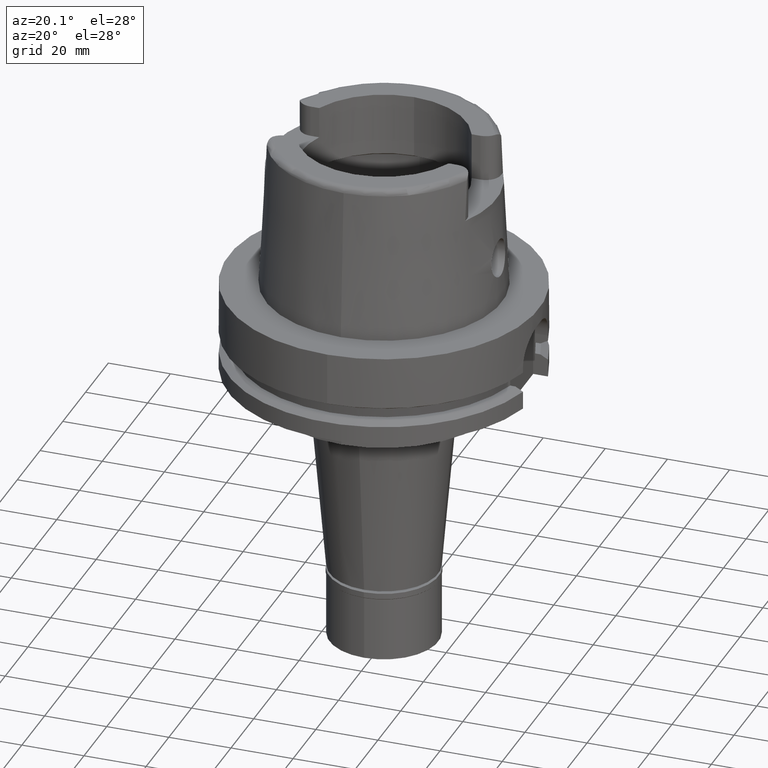
[diagram: clean part render]
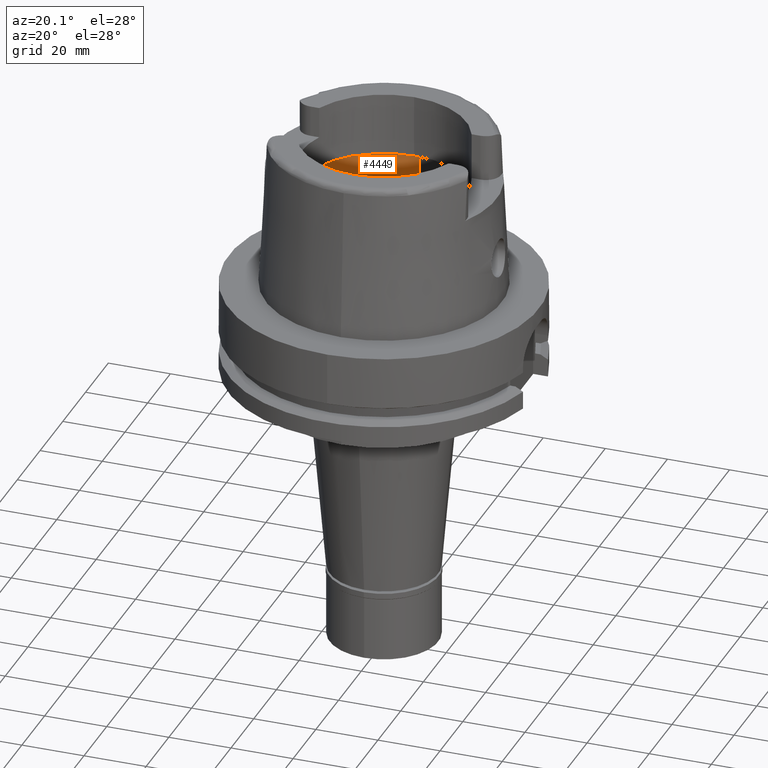
[diagram: same view with one face highlighted and labeled with its STEP entity id]
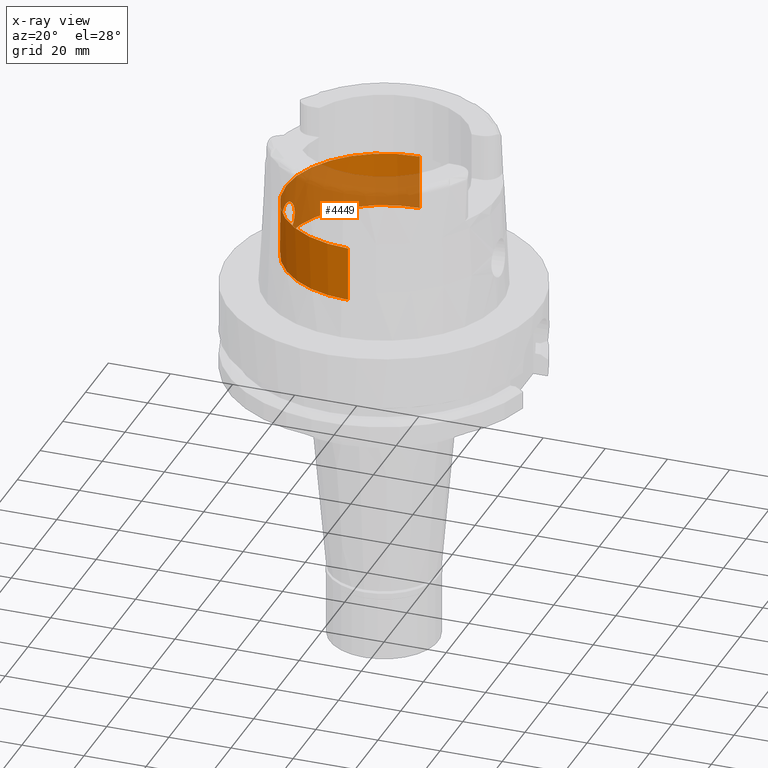
[diagram: x-ray of the same camera — body ghosted, the highlighted face saturated]
A machine part, auxiliary view. The second image highlights one B-rep face of the part: STEP entity #4449.
The next image is the same camera in x-ray: the body ghosted, the highlighted face saturated — about 49% of this face is hidden behind the body in this view.
In plain terms, the highlighted cylindrical surface (partial cylindrical patch) has radius 31.5 mm, axis along (0, 0, 1).
Its self-contained STEP definition (entity closure, byte-faithful):
#18 = CARTESIAN_POINT ( 'NONE',  ( -31.32349082288655140, 3.327008033628819028, 10.00396162849962778 ) ) ;
#25 = CARTESIAN_POINT ( 'NONE',  ( -31.13175257088324699, -4.810165974261359167, 11.40952238063374402 ) ) ;
#55 = CARTESIAN_POINT ( 'NONE',  ( -31.18851524685732457, -4.421882854796444384, 10.94295910892585511 ) ) ;
#81 = CARTESIAN_POINT ( 'NONE',  ( 0.0000000000000000000, 31.50000000000000000, 9.496624327025999790 ) ) ;
#94 = CARTESIAN_POINT ( 'NONE',  ( -31.16672936162041196, 4.570066417542120618, 18.88787845514293195 ) ) ;
#125 = EDGE_CURVE ( 'NONE', #5348, #2144, #3372, .T. ) ;
#150 = CARTESIAN_POINT ( 'NONE',  ( -31.42014854019160808, 2.241940693474473445, 20.56635399946615550 ) ) ;
#282 = CARTESIAN_POINT ( 'NONE',  ( -31.34101844320846908, -3.160485929888725121, 20.10354672025071920 ) ) ;
#301 = EDGE_CURVE ( 'NONE', #3177, #505, #867, .T. ) ;
#307 = CARTESIAN_POINT ( 'NONE',  ( -30.94743210533819777, -5.874330193940548561, 16.22161201482539639 ) ) ;
#336 = CARTESIAN_POINT ( 'NONE',  ( -30.95593416540121368, -5.831243459130761586, 13.54677038949638046 ) ) ;
#362 = CARTESIAN_POINT ( 'NONE',  ( -31.45368646663258971, -1.708868095576118851, 20.75266945037670752 ) ) ;
#377 = CARTESIAN_POINT ( 'NONE',  ( -30.93762858749316891, 5.925727124015542913, 14.05740824919518239 ) ) ;
#392 = CARTESIAN_POINT ( 'NONE',  ( -30.94930950251468005, -5.864458753033531480, 16.26837131289466853 ) ) ;
#409 = CARTESIAN_POINT ( 'NONE',  ( -31.05575275879042962, 5.272411395640640208, 12.13599049502863814 ) ) ;
#437 = CARTESIAN_POINT ( 'NONE',  ( -31.23701506620991353, 4.061635533222172079, 10.58374633635855844 ) ) ;
#452 = CIRCLE ( 'NONE', #1891, 31.50000000000000000 ) ;
#468 = CARTESIAN_POINT ( 'NONE',  ( -31.06311577634362919, 5.229733588350966578, 12.05833787244963595 ) ) ;
#493 = CARTESIAN_POINT ( 'NONE',  ( -30.94593045436082690, 5.882241950627359550, 16.18293882650242921 ) ) ;
#505 = VERTEX_POINT ( 'NONE', #3520 ) ;
#509 = CARTESIAN_POINT ( 'NONE',  ( -31.17833174790802531, -4.494014212508953499, 11.02325130734651104 ) ) ;
#525 = CARTESIAN_POINT ( 'NONE',  ( -31.47898683857984636, 1.327297640497632880, 20.89339845177632426 ) ) ;
#570 = CARTESIAN_POINT ( 'NONE',  ( -31.17415780736850550, 4.519045460301798656, 18.94694097098702557 ) ) ;
#571 = EDGE_CURVE ( 'NONE', #1909, #3177, #2905, .T. ) ;
#712 = CARTESIAN_POINT ( 'NONE',  ( -30.97641383826908168, -5.721085987082438429, 16.81529827853730907 ) ) ;
#739 = CARTESIAN_POINT ( 'NONE',  ( -31.10508259665672526, -4.972008224906379503, 18.36036868394343458 ) ) ;
#764 = CARTESIAN_POINT ( 'NONE',  ( -31.43691933869498811, -1.990915451362954114, 20.66006061400517879 ) ) ;
#768 = ORIENTED_EDGE ( 'NONE', *, *, #571, .T. ) ;
#779 = CARTESIAN_POINT ( 'NONE',  ( 0.0000000000000000000, 31.50000000000000000, 9.496624327025999790 ) ) ;
#796 = CARTESIAN_POINT ( 'NONE',  ( -31.29475139021570129, -3.589615595559386474, 19.80801638660842201 ) ) ;
#825 = CARTESIAN_POINT ( 'NONE',  ( -31.09189596655163257, -5.054034302582627092, 18.23418813231210933 ) ) ;
#840 = CARTESIAN_POINT ( 'NONE',  ( -31.06110456129265174, 5.240538519684997176, 17.92214140273096135 ) ) ;
#867 = LINE ( 'NONE', #779, #5400 ) ;
#870 = CARTESIAN_POINT ( 'NONE',  ( -31.40918884336000616, 2.390158196043999705, 9.496624327025999790 ) ) ;
#895 = CARTESIAN_POINT ( 'NONE',  ( -31.24084224150786326, 4.032106271963857402, 10.55664963490039909 ) ) ;
#908 = ORIENTED_EDGE ( 'NONE', *, *, #4092, .F. ) ;
#921 = CARTESIAN_POINT ( 'NONE',  ( -30.93371310323655621, 5.946578471900404672, 15.80342777563466861 ) ) ;
#929 = CARTESIAN_POINT ( 'NONE',  ( -31.40918884336000616, -2.390158196043999705, 9.496624327025999790 ) ) ;
#944 = CARTESIAN_POINT ( 'NONE',  ( -31.23249460758089668, 4.094819542906014576, 19.38632038932085777 ) ) ;
#1021 = CARTESIAN_POINT ( 'NONE',  ( -31.34174650335914336, 3.171146443259812209, 20.10494144054478127 ) ) ;
#1038 = VERTEX_POINT ( 'NONE', #5267 ) ;
#1054 = CARTESIAN_POINT ( 'NONE',  ( -31.13846561617818054, 4.759434184954509206, 18.65467603972629718 ) ) ;
#1126 = CARTESIAN_POINT ( 'NONE',  ( -30.94252951856037015, -5.900034824237287090, 13.86582254990255691 ) ) ;
#1154 = CARTESIAN_POINT ( 'NONE',  ( -31.39719078221479975, -2.554410369548801185, 20.43989256169862401 ) ) ;
#1174 = DIRECTION ( 'NONE',  ( 0.0000000000000000000, 0.0000000000000000000, 1.000000000000000000 ) ) ;
#1179 = CARTESIAN_POINT ( 'NONE',  ( -31.50000000000000000, -0.3265479863023711404, 20.99999999999999645 ) ) ;
#1202 = CARTESIAN_POINT ( 'NONE',  ( -30.98612694720974048, -5.668766686956753453, 16.97341805757593747 ) ) ;
#1222 = CARTESIAN_POINT ( 'NONE',  ( -31.36782009633069279, 2.891028775829193709, 9.731273391163027142 ) ) ;
#1235 = CARTESIAN_POINT ( 'NONE',  ( -31.04644542293799958, -5.330220524948030558, 17.78089709246167160 ) ) ;
#1250 = CARTESIAN_POINT ( 'NONE',  ( -31.04983422542203542, 5.307409309013299215, 17.80000425750135662 ) ) ;
#1259 = VERTEX_POINT ( 'NONE', #3703 ) ;
#1263 = CARTESIAN_POINT ( 'NONE',  ( -31.04447941503503472, -5.337713364165090013, 12.25976757146831275 ) ) ;
#1276 = CARTESIAN_POINT ( 'NONE',  ( -30.92512888561315165, 5.990997169341833128, 14.52846900197995694 ) ) ;
#1305 = CARTESIAN_POINT ( 'NONE',  ( -30.95644246677530376, 5.827538570014441532, 13.56249915938355954 ) ) ;
#1319 = CARTESIAN_POINT ( 'NONE',  ( -31.22255303074435062, -4.171623873480054812, 10.68733146413649315 ) ) ;
#1332 = CARTESIAN_POINT ( 'NONE',  ( -30.93437236050402106, 5.942683822532534244, 14.17237942525408023 ) ) ;
#1350 = DIRECTION ( 'NONE',  ( 0.0000000000000000000, 1.000000000000000000, 0.0000000000000000000 ) ) ;
#1440 = CARTESIAN_POINT ( 'NONE',  ( -31.39509078049260182, 2.572347112283274395, 20.42299881209909529 ) ) ;
#1455 = ORIENTED_EDGE ( 'NONE', *, *, #3115, .F. ) ;
#1467 = CARTESIAN_POINT ( 'NONE',  ( -31.20791841440617276, 4.280343282812619776, 19.20809647800862763 ) ) ;
#1490 = DIRECTION ( 'NONE',  ( 0.0000000000000000000, -1.000000000000000000, 0.0000000000000000000 ) ) ;
#1514 = EDGE_LOOP ( 'NONE', ( #908, #768, #1865, #5434, #2369, #3731, #1455 ) ) ;
#1544 = CARTESIAN_POINT ( 'NONE',  ( -30.92775184720041182, -5.977412640802596933, 14.46795128574595246 ) ) ;
#1574 = CARTESIAN_POINT ( 'NONE',  ( -30.93382892928060812, -5.945539850610282784, 14.19319525885474320 ) ) ;
#1595 = CARTESIAN_POINT ( 'NONE',  ( 0.0000000000000000000, 0.0000000000000000000, -121.4650000000000034 ) ) ;
#1596 = CARTESIAN_POINT ( 'NONE',  ( 0.0000000000000000000, -31.50000000000000000, 9.496624327025999790 ) ) ;
#1601 = CARTESIAN_POINT ( 'NONE',  ( -31.20656966024432322, -4.300276977927140365, 19.19831898703425566 ) ) ;
#1628 = CARTESIAN_POINT ( 'NONE',  ( -31.03977988921471365, -5.364996439226711544, 12.31341656941119567 ) ) ;
#1634 = EDGE_CURVE ( 'NONE', #505, #2144, #3247, .T. ) ;
#1641 = CARTESIAN_POINT ( 'NONE',  ( -31.08611155676473459, 5.094545817436173074, 11.82760647908407670 ) ) ;
#1655 = CARTESIAN_POINT ( 'NONE',  ( -31.27991803199300946, -3.717071145084863915, 19.71004023163409613 ) ) ;
#1672 = CARTESIAN_POINT ( 'NONE',  ( -30.97632470182173847, 5.723081686261750178, 16.83399554126872388 ) ) ;
#1699 = CARTESIAN_POINT ( 'NONE',  ( -31.01592085651359554, 5.503769088375016771, 12.58248998919346384 ) ) ;
#1728 = CARTESIAN_POINT ( 'NONE',  ( -31.04848138030923366, 5.314483772730771882, 12.21493974198635435 ) ) ;
#1730 = EDGE_CURVE ( 'NONE', #5348, #1038, #452, .T. ) ;
#1738 = CARTESIAN_POINT ( 'NONE',  ( -31.22684634635114165, -4.139177050816888581, 10.65633344042131014 ) ) ;
#1747 = CARTESIAN_POINT ( 'NONE',  ( 0.0000000000000000000, 0.0000000000000000000, 9.496624327025999790 ) ) ;
#1758 = CARTESIAN_POINT ( 'NONE',  ( -30.96438956022355882, 5.785531937370279820, 13.40106817830474917 ) ) ;
#1816 = CARTESIAN_POINT ( 'NONE',  ( -31.30991082094349665, 3.474573137714659143, 19.90636016714586276 ) ) ;
#1843 = CARTESIAN_POINT ( 'NONE',  ( -31.26938442207115898, 3.804054554472543703, 19.63996593169894211 ) ) ;
#1865 = ORIENTED_EDGE ( 'NONE', *, *, #301, .T. ) ;
#1891 = AXIS2_PLACEMENT_3D ( 'NONE', #1747, #2797, #1490 ) ;
#1897 = DIRECTION ( 'NONE',  ( -0.9971171061384286327, 0.07587803796966216541, 0.0000000000000000000 ) ) ;
#1899 = CARTESIAN_POINT ( 'NONE',  ( -31.17032881003553157, 4.545390972206105218, 18.91657780707596004 ) ) ;
#1909 = VERTEX_POINT ( 'NONE', #3509 ) ;
#1966 = DIRECTION ( 'NONE',  ( 0.0000000000000000000, 4.980251297749999745E-14, 1.000000000000000000 ) ) ;
#2009 = CARTESIAN_POINT ( 'NONE',  ( -30.93368174138095839, -5.946708767630597414, 15.86805407497480047 ) ) ;
#2030 = FACE_OUTER_BOUND ( 'NONE', #1514, .T. ) ;
#2036 = CARTESIAN_POINT ( 'NONE',  ( -30.94710947200959339, -5.876027499039540025, 16.21343106709759851 ) ) ;
#2065 = CARTESIAN_POINT ( 'NONE',  ( -31.01235640770275026, -5.521897817200067671, 12.65128427385259791 ) ) ;
#2092 = CARTESIAN_POINT ( 'NONE',  ( -31.43757814455719313, -1.980494451460060867, 20.66371540743568858 ) ) ;
#2104 = CARTESIAN_POINT ( 'NONE',  ( -30.92192357742606745, 6.008213989269155952, 14.86858479195025495 ) ) ;
#2116 = B_SPLINE_CURVE_WITH_KNOTS ( 'NONE', 3,
 ( #870, #5080, #1222, #18, #2615, #2589, #3786, #5500, #4767, #895, #437, #3070, #3842, #4307, #2962, #3449, #1641, #3867, #468, #409, #2643, #1728, #2190, #5161, #4656, #4683, #4706, #1699, #5564, #1758, #1305, #3370, #3045, #377, #3477, #5188, #1332, #1276, #2104, #4740, #4222, #921, #4334, #5107, #2988, #493, #3812, #5530, #4250, #1672, #3424, #5133, #3400, #1250, #840, #2554, #4791, #4819, #4901, #3093, #2320, #2723, #3970, #5319, #1054, #3141, #3947, #94, #1899, #4413, #570, #2781, #1467, #944, #4023, #2264, #3574, #1843, #3550, #2291, #1816, #1021, #2668, #1440, #4441, #150, #5212, #4473, #3924, #3997, #4366, #525, #4843, #3500 ),
 .UNSPECIFIED., .F., .F.,
 ( 4, 2, 2, 2, 1, 1, 2, 2, 2, 2, 2, 1, 1, 1, 1, 2, 2, 2, 2, 1, 1, 2, 2, 2, 2, 1, 1, 1, 2, 2, 2, 2, 2, 1, 1, 1, 2, 2, 2, 2, 1, 1, 2, 2, 2, 1, 1, 1, 2, 2, 2, 2, 1, 1, 1, 2, 2, 4 ),
 ( 0.0000000000000000000, 0.06249999999998009925, 0.09374999999997020439, 0.1093749999999652500, 0.1171874999999627381, 0.1210937499999615169, 0.1230468749999610034, 0.1249999999999605038, 0.1874999999999471534, 0.2187499999999405476, 0.2343749999999373834, 0.2421874999999356071, 0.2460937499999348854, 0.2480468749999344413, 0.2490234374999341915, 0.2495117187499341360, 0.2499999999999340528, 0.3124999999999486522, 0.3437499999999559797, 0.3593749999999594769, 0.3671874999999610312, 0.3710937499999619194, 0.3749999999999628630, 0.4374999999999754086, 0.4687499999999815148, 0.4843749999999844569, 0.4921874999999859002, 0.4960937499999866218, 0.4980468749999870104, 0.4999999999999873435, 0.5624999999999779066, 0.5937499999999731326, 0.6093749999999708011, 0.6171874999999699130, 0.6210937499999694689, 0.6230468749999692468, 0.6240234374999691358, 0.6249999999999690248, 0.6562499999999792388, 0.6718749999999840128, 0.6796874999999863443, 0.6835937499999874545, 0.6855468749999878986, 0.6874999999999882316, 0.7187499999999936717, 0.7343749999999962252, 0.7421874999999974465, 0.7460937499999981126, 0.7480468749999982236, 0.7499999999999982236, 0.8124999999999987788, 0.8437499999999990008, 0.8593749999999993339, 0.8671874999999994449, 0.8710937499999994449, 0.8730468749999993339, 0.8749999999999992228, 1.000000000000000000 ),
 .UNSPECIFIED. ) ;
#2120 = CARTESIAN_POINT ( 'NONE',  ( -31.04561012872794734, -5.331134960420219393, 12.24700012929614346 ) ) ;
#2144 = VERTEX_POINT ( 'NONE', #5303 ) ;
#2179 = AXIS2_PLACEMENT_3D ( 'NONE', #2806, #4957, #1897 ) ;
#2190 = CARTESIAN_POINT ( 'NONE',  ( -31.04667519188458158, 5.324957521904295277, 12.23505893541012846 ) ) ;
#2197 = CARTESIAN_POINT ( 'NONE',  ( -31.04290399261025613, -5.346870050693134147, 12.27764605081231153 ) ) ;
#2264 = CARTESIAN_POINT ( 'NONE',  ( -31.25913369638497841, 3.886504216267267164, 19.57146610572699075 ) ) ;
#2291 = CARTESIAN_POINT ( 'NONE',  ( -31.27234702492417995, 3.780050857770624884, 19.65954473550145565 ) ) ;
#2320 = CARTESIAN_POINT ( 'NONE',  ( -31.08049678301520302, 5.123837371361086745, 18.12190796477024080 ) ) ;
#2369 = ORIENTED_EDGE ( 'NONE', *, *, #125, .F. ) ;
#2429 = CARTESIAN_POINT ( 'NONE',  ( -30.92305071238688896, -6.002379053384090390, 15.01849219255843693 ) ) ;
#2455 = CARTESIAN_POINT ( 'NONE',  ( -31.14022300953953604, -4.746230320138650427, 18.67462547813700979 ) ) ;
#2485 = CARTESIAN_POINT ( 'NONE',  ( -31.23940338336935341, -4.052370608400865493, 19.43806902758640121 ) ) ;
#2513 = CARTESIAN_POINT ( 'NONE',  ( -31.27640598488078183, -3.746479245408927738, 19.68658204358560582 ) ) ;
#2541 = CARTESIAN_POINT ( 'NONE',  ( -30.95798728136822575, -5.818866717594261218, 16.46680424131516318 ) ) ;
#2554 = CARTESIAN_POINT ( 'NONE',  ( -31.06686217895856927, 5.206177054988260444, 17.98321914708447977 ) ) ;
#2589 = CARTESIAN_POINT ( 'NONE',  ( -31.28063744471767293, 3.709077933206780919, 10.28278546028168350 ) ) ;
#2615 = CARTESIAN_POINT ( 'NONE',  ( -31.30723631916381677, 3.477905098599154865, 10.10697796464562082 ) ) ;
#2623 = CARTESIAN_POINT ( 'NONE',  ( -31.14922735696736567, -4.695569929163097456, 11.25909119766945210 ) ) ;
#2643 = CARTESIAN_POINT ( 'NONE',  ( -31.05225130717165527, 5.292660662375166858, 12.17351245479975752 ) ) ;
#2652 = CARTESIAN_POINT ( 'NONE',  ( -31.39148161317693209, -2.622849796802419586, 9.597684071036159281 ) ) ;
#2657 = AXIS2_PLACEMENT_3D ( 'NONE', #1595, #1174, #4689 ) ;
#2668 = CARTESIAN_POINT ( 'NONE',  ( -31.38261530185072701, 2.721410017135797776, 20.35005390044162610 ) ) ;
#2723 = CARTESIAN_POINT ( 'NONE',  ( -31.09274866793861136, 5.049401603332225541, 18.24387762843791450 ) ) ;
#2781 = CARTESIAN_POINT ( 'NONE',  ( -31.19154441636784725, 4.398928109239943041, 19.08397429922254318 ) ) ;
#2797 = DIRECTION ( 'NONE',  ( 0.0000000000000000000, 0.0000000000000000000, -1.000000000000000000 ) ) ;
#2806 = CARTESIAN_POINT ( 'NONE',  ( 0.0000000000000000000, 0.0000000000000000000, 9.496624327025999790 ) ) ;
#2862 = CARTESIAN_POINT ( 'NONE',  ( -31.07994561026090707, -5.127173626908843929, 18.11644538681908401 ) ) ;
#2887 = CARTESIAN_POINT ( 'NONE',  ( -31.35604844020856774, -3.006498619937238548, 20.19522154513511580 ) ) ;
#2905 = CIRCLE ( 'NONE', #2179, 31.50000000000001421 ) ;
#2914 = CARTESIAN_POINT ( 'NONE',  ( -31.31649962321132108, -3.393889419995900436, 19.94876042201898159 ) ) ;
#2944 = CARTESIAN_POINT ( 'NONE',  ( -31.41935547822691177, -2.266488297490468540, 20.56256590242129079 ) ) ;
#2962 = CARTESIAN_POINT ( 'NONE',  ( -31.14650769023217691, 4.717080317099078712, 11.27618236073983304 ) ) ;
#2973 = CARTESIAN_POINT ( 'NONE',  ( -31.43652072293481936, -1.997190489758184695, 20.65784848341202462 ) ) ;
#2988 = CARTESIAN_POINT ( 'NONE',  ( -30.94473393366802583, 5.888545886982480049, 16.15144669746529615 ) ) ;
#2998 = VECTOR ( 'NONE', #1966, 1000.000000000000000 ) ;
#3003 = CARTESIAN_POINT ( 'NONE',  ( -31.06173191134951850, -5.237269791674622255, 12.06565380476594029 ) ) ;
#3028 = CARTESIAN_POINT ( 'NONE',  ( -31.21269346216207197, -4.245466284564772153, 10.75947851928595256 ) ) ;
#3045 = CARTESIAN_POINT ( 'NONE',  ( -30.94200195665597519, 5.903010099515609177, 13.92037781757020376 ) ) ;
#3053 = CARTESIAN_POINT ( 'NONE',  ( -31.30905910075682641, -3.469252964836257558, 10.09276896414903746 ) ) ;
#3070 = CARTESIAN_POINT ( 'NONE',  ( -31.23445206851721778, 4.081324480657086973, 10.60193564054042348 ) ) ;
#3093 = CARTESIAN_POINT ( 'NONE',  ( -31.07984849996369547, 5.127773716637755719, 18.11544090525824302 ) ) ;
#3115 = EDGE_CURVE ( 'NONE', #1259, #1038, #5136, .T. ) ;
#3141 = CARTESIAN_POINT ( 'NONE',  ( -31.15169397845050625, 4.671643227279887789, 18.76536415716670447 ) ) ;
#3177 = VERTEX_POINT ( 'NONE', #81 ) ;
#3247 = CIRCLE ( 'NONE', #4584, 31.50000000000000000 ) ;
#3273 = CARTESIAN_POINT ( 'NONE',  ( -30.93222271111462618, -5.953949471336658306, 14.25775169813571708 ) ) ;
#3307 = CARTESIAN_POINT ( 'NONE',  ( -31.03363864823957741, -5.400503966555636914, 12.38500606152679673 ) ) ;
#3333 = CARTESIAN_POINT ( 'NONE',  ( -30.92595558986129234, -5.986893885764251522, 14.59467803749711301 ) ) ;
#3358 = CARTESIAN_POINT ( 'NONE',  ( -31.44083197114822070, -1.928360059489470757, 20.68174959016517889 ) ) ;
#3370 = CARTESIAN_POINT ( 'NONE',  ( -30.94648779811106465, 5.879665911314336135, 13.80159172888663299 ) ) ;
#3372 = LINE ( 'NONE', #3701, #2998 ) ;
#3383 = CARTESIAN_POINT ( 'NONE',  ( -31.27405433980335303, -3.766081976129614706, 19.67084409251802768 ) ) ;
#3400 = CARTESIAN_POINT ( 'NONE',  ( -31.04264720078996476, 5.349519885420458642, 17.71860479383797937 ) ) ;
#3424 = CARTESIAN_POINT ( 'NONE',  ( -31.00965087116449226, 5.538766005501941869, 17.31330327552412385 ) ) ;
#3449 = CARTESIAN_POINT ( 'NONE',  ( -31.09977013286906811, 5.012327373006350228, 11.69757809510679358 ) ) ;
#3477 = CARTESIAN_POINT ( 'NONE',  ( -30.93593859625227793, 5.934521181066132911, 14.11578092717355482 ) ) ;
#3486 = CARTESIAN_POINT ( 'NONE',  ( -31.04594134377724401, -5.329206913694619629, 12.24327076506517642 ) ) ;
#3500 = CARTESIAN_POINT ( 'NONE',  ( -31.50000000000000000, 0.0000000000000000000, 21.00000000000000000 ) ) ;
#3509 = CARTESIAN_POINT ( 'NONE',  ( -31.40918884336000616, 2.390158196043999705, 9.496624327025999790 ) ) ;
#3520 = CARTESIAN_POINT ( 'NONE',  ( 0.0000000000000000000, 31.50000000000000000, 27.11662432702999936 ) ) ;
#3550 = CARTESIAN_POINT ( 'NONE',  ( -31.27143481256237223, 3.787451454560986530, 19.65352837963562038 ) ) ;
#3574 = CARTESIAN_POINT ( 'NONE',  ( -31.26630895505400787, 3.828904687625146241, 19.61955552062046948 ) ) ;
#3684 = CARTESIAN_POINT ( 'NONE',  ( -31.01918391770670880, -5.486194813089742439, 17.45333340524619814 ) ) ;
#3701 = CARTESIAN_POINT ( 'NONE',  ( 0.0000000000000000000, -31.50000000000000000, 9.496624327025999790 ) ) ;
#3703 = CARTESIAN_POINT ( 'NONE',  ( -31.50000000000000000, 0.0000000000000000000, 21.00000000000000000 ) ) ;
#3712 = CARTESIAN_POINT ( 'NONE',  ( -31.08538557023262783, -5.094024154619515521, 18.17044583788935341 ) ) ;
#3731 = ORIENTED_EDGE ( 'NONE', *, *, #1730, .T. ) ;
#3737 = CYLINDRICAL_SURFACE ( 'NONE', #2657, 31.50000000000000000 ) ;
#3744 = CARTESIAN_POINT ( 'NONE',  ( -30.93074658613458183, -5.961685185737981563, 14.32070647320225021 ) ) ;
#3772 = CARTESIAN_POINT ( 'NONE',  ( -31.08076884949214147, -5.122171192671309825, 18.12465643396276960 ) ) ;
#3786 = CARTESIAN_POINT ( 'NONE',  ( -31.27140163342529533, 3.786930396272321087, 10.34493436048593473 ) ) ;
#3799 = CARTESIAN_POINT ( 'NONE',  ( -31.44526205151289133, -1.855285155598727753, 20.70625145610319962 ) ) ;
#3812 = CARTESIAN_POINT ( 'NONE',  ( -30.94673886613690783, 5.877982721191042259, 16.20392431753280604 ) ) ;
#3828 = CARTESIAN_POINT ( 'NONE',  ( -31.27377137745118674, -3.781506379768901915, 10.32190820871473491 ) ) ;
#3842 = CARTESIAN_POINT ( 'NONE',  ( -31.23332560111597545, 4.089945825664356605, 10.60994610808170613 ) ) ;
#3867 = CARTESIAN_POINT ( 'NONE',  ( -31.06850460713327422, 5.198378319990617058, 12.00308787639210806 ) ) ;
#3876 = CARTESIAN_POINT ( 'NONE',  ( -31.22972362035887173, -4.117366476381970841, 10.63565364138256264 ) ) ;
#3911 = CARTESIAN_POINT ( 'NONE',  ( 0.0000000000000000000, 0.0000000000000000000, 27.11662432702999936 ) ) ;
#3924 = CARTESIAN_POINT ( 'NONE',  ( -31.43467982550597029, 2.025941034669429541, 20.64762363976590720 ) ) ;
#3947 = CARTESIAN_POINT ( 'NONE',  ( -31.15848807210792870, 4.626128917223934600, 18.82141154671641559 ) ) ;
#3970 = CARTESIAN_POINT ( 'NONE',  ( -31.10654835051517608, 4.964504456886155381, 18.37389966394120933 ) ) ;
#3997 = CARTESIAN_POINT ( 'NONE',  ( -31.43582689398714081, 2.008086262744823269, 20.65399676457067102 ) ) ;
#4023 = CARTESIAN_POINT ( 'NONE',  ( -31.24478650319757378, 4.000146972122775146, 19.47344337375298196 ) ) ;
#4092 = EDGE_CURVE ( 'NONE', #1909, #1259, #2116, .T. ) ;
#4132 = CARTESIAN_POINT ( 'NONE',  ( -30.98386492105815293, -5.680366410666448651, 13.06034627170278384 ) ) ;
#4159 = CARTESIAN_POINT ( 'NONE',  ( -31.08261316868166091, -5.110941909711110398, 18.14299035202072474 ) ) ;
#4186 = CARTESIAN_POINT ( 'NONE',  ( -30.92614117299475041, -5.986366312033855053, 15.52820774786542479 ) ) ;
#4210 = CARTESIAN_POINT ( 'NONE',  ( -30.94817694289053733, -5.870412946825755540, 16.24029955089399735 ) ) ;
#4222 = CARTESIAN_POINT ( 'NONE',  ( -30.92787543504688230, 5.977261824580265781, 15.54909738019585674 ) ) ;
#4235 = CARTESIAN_POINT ( 'NONE',  ( -30.95205926470686109, -5.850012380410982260, 16.33415188865240708 ) ) ;
#4250 = CARTESIAN_POINT ( 'NONE',  ( -30.95933177743311049, 5.811633654702270668, 16.52222279631892121 ) ) ;
#4266 = CARTESIAN_POINT ( 'NONE',  ( -31.36791421861969553, -2.890019046185014151, 9.730804379610496824 ) ) ;
#4307 = CARTESIAN_POINT ( 'NONE',  ( -31.18534850054105334, 4.455287159555067156, 10.95204151679419802 ) ) ;
#4334 = CARTESIAN_POINT ( 'NONE',  ( -30.93714704041453345, 5.928509116430831227, 15.93036950514657413 ) ) ;
#4346 = CARTESIAN_POINT ( 'NONE',  ( -31.08511263625984000, -5.105119587967744010, 11.82909178105153991 ) ) ;
#4366 = CARTESIAN_POINT ( 'NONE',  ( -31.43630385444517472, 2.000622172413721866, 20.65664489742769305 ) ) ;
#4413 = CARTESIAN_POINT ( 'NONE',  ( -31.17274343502236533, 4.528794995611658436, 18.93575617852726012 ) ) ;
#4441 = CARTESIAN_POINT ( 'NONE',  ( -31.41208281717244333, 2.351603999897532660, 20.52054617526119884 ) ) ;
#4449 = ADVANCED_FACE ( 'NONE', ( #2030 ), #3737, .F. ) ;
#4473 = CARTESIAN_POINT ( 'NONE',  ( -31.43294577605537654, 2.052754843042296606, 20.63798110142304409 ) ) ;
#4559 = CARTESIAN_POINT ( 'NONE',  ( -31.30799771246277885, -3.472088527467765307, 19.89428728708679728 ) ) ;
#4584 = AXIS2_PLACEMENT_3D ( 'NONE', #3911, #4757, #1350 ) ;
#4586 = CARTESIAN_POINT ( 'NONE',  ( -31.27269614581119939, -3.777346078270936491, 19.66173487016777699 ) ) ;
#4610 = CARTESIAN_POINT ( 'NONE',  ( -31.47211228098307245, -1.331143173006247515, 20.85304463342746217 ) ) ;
#4642 = CARTESIAN_POINT ( 'NONE',  ( -31.43856246276468980, -1.964860057676875993, 20.66917438049619804 ) ) ;
#4656 = CARTESIAN_POINT ( 'NONE',  ( -31.04541741131608390, 5.332261638236044377, 12.24918406514502323 ) ) ;
#4668 = CARTESIAN_POINT ( 'NONE',  ( -31.11666971526179637, -4.898240710040457024, 18.46621286285141750 ) ) ;
#4683 = CARTESIAN_POINT ( 'NONE',  ( -31.04516876237524770, 5.333706660037295322, 12.25198694494920559 ) ) ;
#4689 = DIRECTION ( 'NONE',  ( 0.0000000000000000000, 1.000000000000000000, 0.0000000000000000000 ) ) ;
#4693 = CARTESIAN_POINT ( 'NONE',  ( -31.20451354823489254, -4.305616503025695430, 10.82090635158526659 ) ) ;
#4706 = CARTESIAN_POINT ( 'NONE',  ( -31.04514808781546620, 5.333826680002976772, 12.25221885186932447 ) ) ;
#4740 = CARTESIAN_POINT ( 'NONE',  ( -30.92535726447542643, 5.990440253704202966, 15.37894840181665224 ) ) ;
#4757 = DIRECTION ( 'NONE',  ( 0.0000000000000000000, 0.0000000000000000000, 1.000000000000000000 ) ) ;
#4767 = CARTESIAN_POINT ( 'NONE',  ( -31.24965106851529484, 3.963250736909201155, 10.49472557091464608 ) ) ;
#4791 = CARTESIAN_POINT ( 'NONE',  ( -31.07379368659741914, 5.164436102257638161, 18.05443616753078473 ) ) ;
#4819 = CARTESIAN_POINT ( 'NONE',  ( -31.07731301217397046, 5.143148640470579736, 18.09002728997007381 ) ) ;
#4843 = CARTESIAN_POINT ( 'NONE',  ( -31.50000000000000000, 0.6497100444795000929, 21.00000000000000711 ) ) ;
#4901 = CARTESIAN_POINT ( 'NONE',  ( -31.07883277422617141, 5.133935681238464888, 18.10527611398791237 ) ) ;
#4957 = DIRECTION ( 'NONE',  ( 0.0000000000000000000, 0.0000000000000000000, -1.000000000000000000 ) ) ;
#4979 = CARTESIAN_POINT ( 'NONE',  ( -30.93324960897617615, -5.948571652293114020, 14.21581752991716030 ) ) ;
#5013 = CARTESIAN_POINT ( 'NONE',  ( -31.49468805352058354, -0.6599477195244330963, 20.97328372165743104 ) ) ;
#5041 = CARTESIAN_POINT ( 'NONE',  ( -30.99447913717641967, -5.622133553489377711, 12.89693115420993230 ) ) ;
#5065 = CARTESIAN_POINT ( 'NONE',  ( -31.15643061514814249, -4.638920281986808725, 18.80919738505595973 ) ) ;
#5080 = CARTESIAN_POINT ( 'NONE',  ( -31.39146062832804418, 2.623125559763849868, 9.597803837001924521 ) ) ;
#5095 = CARTESIAN_POINT ( 'NONE',  ( -30.96380299669559832, -5.788171344324514855, 16.58227863116881551 ) ) ;
#5107 = CARTESIAN_POINT ( 'NONE',  ( -30.94205473085094482, 5.902660445714490223, 16.07787104584921778 ) ) ;
#5133 = CARTESIAN_POINT ( 'NONE',  ( -31.02206572473870594, 5.468750945434243782, 17.47496731597874842 ) ) ;
#5136 = B_SPLINE_CURVE_WITH_KNOTS ( 'NONE', 3,
 ( #5232, #1179, #5013, #5513, #4610, #5485, #362, #3799, #3358, #4642, #2092, #764, #2973, #2944, #1154, #2887, #282, #2914, #4559, #796, #5459, #1655, #2513, #3383, #4586, #2485, #1601, #5065, #2455, #4668, #739, #825, #3712, #4159, #3772, #2862, #1235, #3684, #1202, #712, #5095, #2541, #4235, #392, #4210, #307, #2036, #2009, #4186, #2429, #5399, #3333, #1544, #3744, #3273, #4979, #1574, #1126, #336, #4132, #5041, #2065, #5427, #3307, #1628, #2197, #1263, #5220, #2120, #3486, #3003, #4346, #25, #2623, #509, #55, #4693, #3028, #1319, #1738, #3876, #5196, #3828, #3053, #4266, #2652, #929 ),
 .UNSPECIFIED., .F., .F.,
 ( 4, 2, 2, 1, 1, 1, 1, 2, 2, 2, 2, 2, 1, 1, 2, 2, 2, 2, 1, 1, 1, 2, 2, 2, 2, 1, 1, 1, 2, 2, 2, 2, 1, 1, 2, 2, 2, 2, 1, 1, 1, 1, 1, 2, 2, 2, 2, 2, 1, 1, 2, 2, 2, 4 ),
 ( 0.0000000000000000000, 0.06249999999999746036, 0.09374999999999615585, 0.1093749999999954758, 0.1171874999999952538, 0.1210937499999951567, 0.1230468749999951150, 0.1240234374999950318, 0.1249999999999949485, 0.1874999999999804323, 0.2187499999999731048, 0.2343749999999693856, 0.2421874999999675260, 0.2460937499999667766, 0.2480468749999663602, 0.2499999999999659439, 0.3124999999999600875, 0.3437499999999569789, 0.3593749999999554245, 0.3671874999999548139, 0.3710937499999545364, 0.3730468749999541478, 0.3749999999999537592, 0.4374999999999445444, 0.4687499999999398814, 0.4843749999999372169, 0.4921874999999358846, 0.4960937499999348299, 0.4980468749999339417, 0.4999999999999331091, 0.5624999999999156231, 0.5937499999999067413, 0.6093749999999023004, 0.6171874999999000799, 0.6210937499998988587, 0.6249999999998975264, 0.6874999999998783196, 0.7187499999998687716, 0.7343749999998638867, 0.7421874999998614442, 0.7460937499998602229, 0.7480468749998595568, 0.7490234374998594458, 0.7495117187498594458, 0.7499999999998594458, 0.8124999999998924194, 0.8437499999999089617, 0.8593749999999172884, 0.8671874999999215072, 0.8710937499999235056, 0.8730468749999245048, 0.8749999999999256151, 0.9374999999999628075, 1.000000000000000000 ),
 .UNSPECIFIED. ) ;
#5161 = CARTESIAN_POINT ( 'NONE',  ( -31.04579179142387702, 5.330086477804043099, 12.24496901907187052 ) ) ;
#5188 = CARTESIAN_POINT ( 'NONE',  ( -30.93485289316478770, 5.940177522134610477, 14.15461486717630812 ) ) ;
#5196 = CARTESIAN_POINT ( 'NONE',  ( -31.23133761828141175, -4.105091700733544791, 10.62411127408790357 ) ) ;
#5212 = CARTESIAN_POINT ( 'NONE',  ( -31.42880553356935991, 2.115537886664671685, 20.61489723784622896 ) ) ;
#5220 = CARTESIAN_POINT ( 'NONE',  ( -31.04515746123001563, -5.333769000241029623, 12.25210689684297272 ) ) ;
#5232 = CARTESIAN_POINT ( 'NONE',  ( -31.50000000000000000, 0.0000000000000000000, 21.00000000000000000 ) ) ;
#5267 = CARTESIAN_POINT ( 'NONE',  ( -31.40918884336000616, -2.390158196043999705, 9.496624327025999790 ) ) ;
#5303 = CARTESIAN_POINT ( 'NONE',  ( 0.0000000000000000000, -31.50000000000000000, 27.11662432702999936 ) ) ;
#5319 = CARTESIAN_POINT ( 'NONE',  ( -31.13012647471994754, 4.813645143598291654, 18.58276377852474681 ) ) ;
#5348 = VERTEX_POINT ( 'NONE', #1596 ) ;
#5399 = CARTESIAN_POINT ( 'NONE',  ( -30.92339062417950402, -6.000484460467343517, 14.84859520996941562 ) ) ;
#5400 = VECTOR ( 'NONE', #5498, 1000.000000000000000 ) ;
#5427 = CARTESIAN_POINT ( 'NONE',  ( -31.02178402955314951, -5.468559945717279547, 12.52833316960381360 ) ) ;
#5434 = ORIENTED_EDGE ( 'NONE', *, *, #1634, .T. ) ;
#5459 = CARTESIAN_POINT ( 'NONE',  ( -31.28800486506107958, -3.648435651105223165, 19.76374086633028782 ) ) ;
#5485 = CARTESIAN_POINT ( 'NONE',  ( -31.46016040140437653, -1.583019834101917267, 20.78805378446189778 ) ) ;
#5498 = DIRECTION ( 'NONE',  ( 0.0000000000000000000, -4.980251297749999745E-14, 1.000000000000000000 ) ) ;
#5500 = CARTESIAN_POINT ( 'NONE',  ( -31.25699363677121667, 3.904368118682594258, 10.44384711873999194 ) ) ;
#5513 = CARTESIAN_POINT ( 'NONE',  ( -31.47875221408233415, -1.162989216336099085, 20.88866440168453309 ) ) ;
#5530 = CARTESIAN_POINT ( 'NONE',  ( -30.94719561230470362, 5.875576251752445245, 16.21560429242364165 ) ) ;
#5564 = CARTESIAN_POINT ( 'NONE',  ( -30.99216278358456123, 5.635632065652925959, 12.91301598098372416 ) ) ;